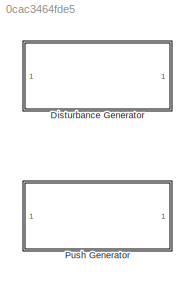
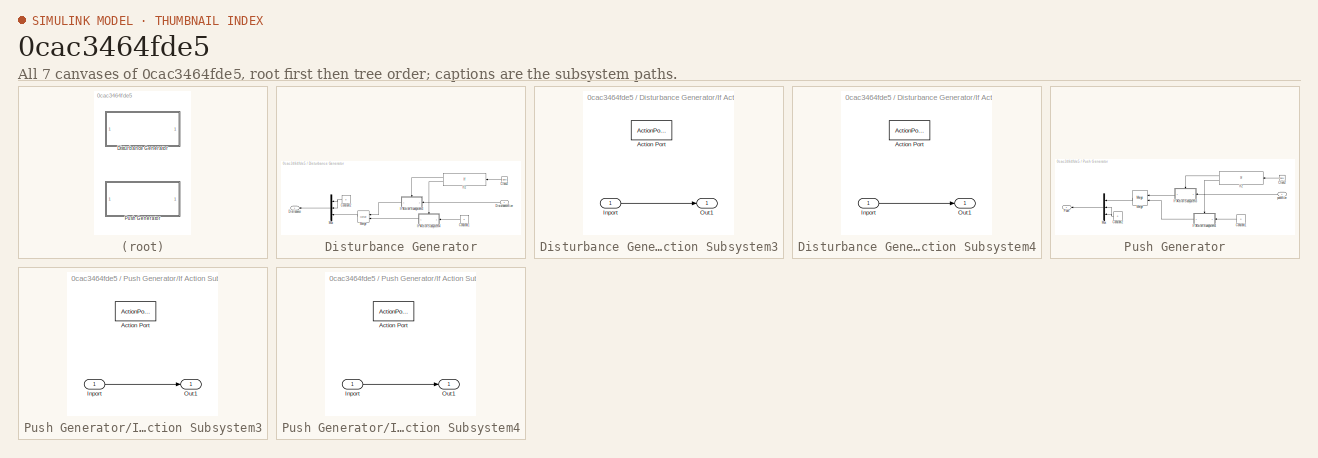
[diagram: thumbnail index - all 7 canvases of the model, root first then tree order]
MODEL slx_0cac3464fde5
KIND library
CONFIG AbsTol = auto
CONFIG EnableMultiTasking = off
CONFIG FixedStep = auto
CONFIG MaxStep = auto
CONFIG MinStep = auto
CONFIG RelTol = 1e-3
CONFIG SampleTimeConstraint = Unconstrained
CONFIG Solver = VariableStepAuto
CONFIG SolverName = VariableStepAuto
CONFIG StartTime = 0.0
CONFIG StopTime = 10.0
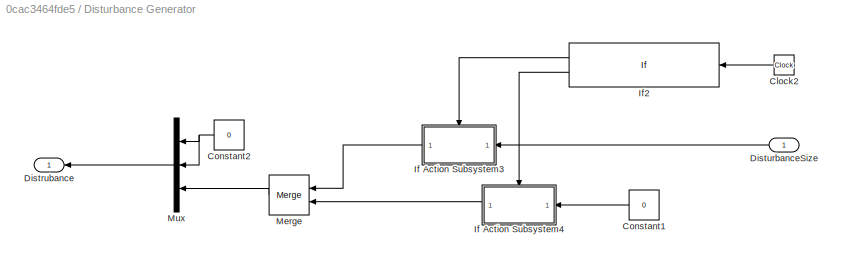
BLOCK [SubSystem] Disturbance Generator
  Ports = [1, 1]
  RequestExecContextInheritance = off
BLOCK [Clock] Disturbance Generator/Clock2
BLOCK [Constant] Disturbance Generator/Constant1
  Value = 0
BLOCK [Constant] Disturbance Generator/Constant2
  Value = 0
BLOCK [Outport] Disturbance Generator/Distrubance
  IconDisplay = Port number
BLOCK [Inport] Disturbance Generator/DisturbanceSize
  IconDisplay = Port number
BLOCK [SubSystem] Disturbance Generator/If Action Subsystem3
  Ports = [1, 1, 0, 0, 0, 0, 0, 1]
  RequestExecContextInheritance = off
  TreatAsAtomicUnit = on
BLOCK [ActionPort] Disturbance Generator/If Action Subsystem3/Action Port
BLOCK [Inport] Disturbance Generator/If Action Subsystem3/Inport
  IconDisplay = Port number
BLOCK [Outport] Disturbance Generator/If Action Subsystem3/Out1
  IconDisplay = Port number
  InitialOutput = 0
BLOCK [SubSystem] Disturbance Generator/If Action Subsystem4
  Ports = [1, 1, 0, 0, 0, 0, 0, 1]
  RequestExecContextInheritance = off
  TreatAsAtomicUnit = on
BLOCK [ActionPort] Disturbance Generator/If Action Subsystem4/Action Port
BLOCK [Inport] Disturbance Generator/If Action Subsystem4/Inport
  IconDisplay = Port number
BLOCK [Outport] Disturbance Generator/If Action Subsystem4/Out1
  IconDisplay = Port number
  InitialOutput = 0
BLOCK [If] Disturbance Generator/If2
  IfExpression = u1 > distStart & u1 < distStop
  Ports = [1, 2]
BLOCK [Merge] Disturbance Generator/Merge
  Ports = [2, 1]
BLOCK [Mux] Disturbance Generator/Mux
  DisplayOption = bar
  Inputs = 3
  Ports = [3, 1]
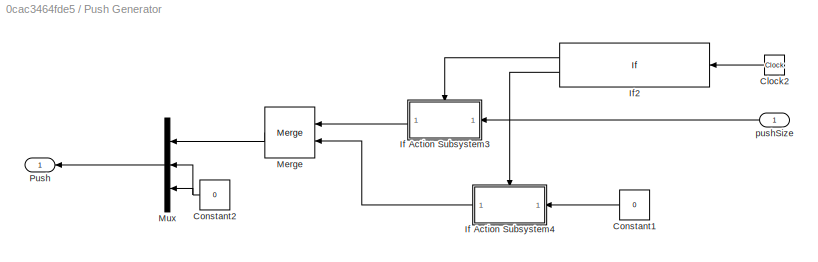
BLOCK [SubSystem] Push Generator
  AncestorBlock = myLibrary/Disturbance Generator
  Ports = [1, 1]
  RequestExecContextInheritance = off
BLOCK [Clock] Push Generator/Clock2
BLOCK [Constant] Push Generator/Constant1
  Value = 0
BLOCK [Constant] Push Generator/Constant2
  Value = 0
BLOCK [SubSystem] Push Generator/If Action Subsystem3
  Ports = [1, 1, 0, 0, 0, 0, 0, 1]
  RequestExecContextInheritance = off
  TreatAsAtomicUnit = on
BLOCK [ActionPort] Push Generator/If Action Subsystem3/Action Port
BLOCK [Inport] Push Generator/If Action Subsystem3/Inport
  IconDisplay = Port number
BLOCK [Outport] Push Generator/If Action Subsystem3/Out1
  IconDisplay = Port number
  InitialOutput = 0
BLOCK [SubSystem] Push Generator/If Action Subsystem4
  Ports = [1, 1, 0, 0, 0, 0, 0, 1]
  RequestExecContextInheritance = off
  TreatAsAtomicUnit = on
BLOCK [ActionPort] Push Generator/If Action Subsystem4/Action Port
BLOCK [Inport] Push Generator/If Action Subsystem4/Inport
  IconDisplay = Port number
BLOCK [Outport] Push Generator/If Action Subsystem4/Out1
  IconDisplay = Port number
  InitialOutput = 0
BLOCK [If] Push Generator/If2
  IfExpression = u1 > distStart & u1 < distStop
  Ports = [1, 2]
BLOCK [Merge] Push Generator/Merge
  Ports = [2, 1]
BLOCK [Mux] Push Generator/Mux
  DisplayOption = bar
  Inputs = 3
  Ports = [3, 1]
BLOCK [Outport] Push Generator/Push 
  IconDisplay = Port number
BLOCK [Inport] Push Generator/pushSize
  IconDisplay = Port number
LINE Disturbance Generator/Clock2:1 -> Disturbance Generator/If2:1
LINE Disturbance Generator/Constant1:1 -> Disturbance Generator/If Action Subsystem4:1
NET Disturbance Generator/Constant2:1 -> Disturbance Generator/Mux:1, Disturbance Generator/Mux:2
LINE Disturbance Generator/DisturbanceSize:1 -> Disturbance Generator/If Action Subsystem3:1
LINE Disturbance Generator/If Action Subsystem3/Inport:1 -> Disturbance Generator/If Action Subsystem3/Out1:1
LINE Disturbance Generator/If Action Subsystem3:1 -> Disturbance Generator/Merge:1
LINE Disturbance Generator/If Action Subsystem4/Inport:1 -> Disturbance Generator/If Action Subsystem4/Out1:1
LINE Disturbance Generator/If Action Subsystem4:1 -> Disturbance Generator/Merge:2
LINE Disturbance Generator/If2:1 -> Disturbance Generator/If Action Subsystem3:ifaction
LINE Disturbance Generator/If2:2 -> Disturbance Generator/If Action Subsystem4:ifaction
LINE Disturbance Generator/Merge:1 -> Disturbance Generator/Mux:3
LINE Disturbance Generator/Mux:1 -> Disturbance Generator/Distrubance:1
note: NET lines group one-source signal fan-out (src -> all destinations, sorted); 1:1 wires keep LINE
